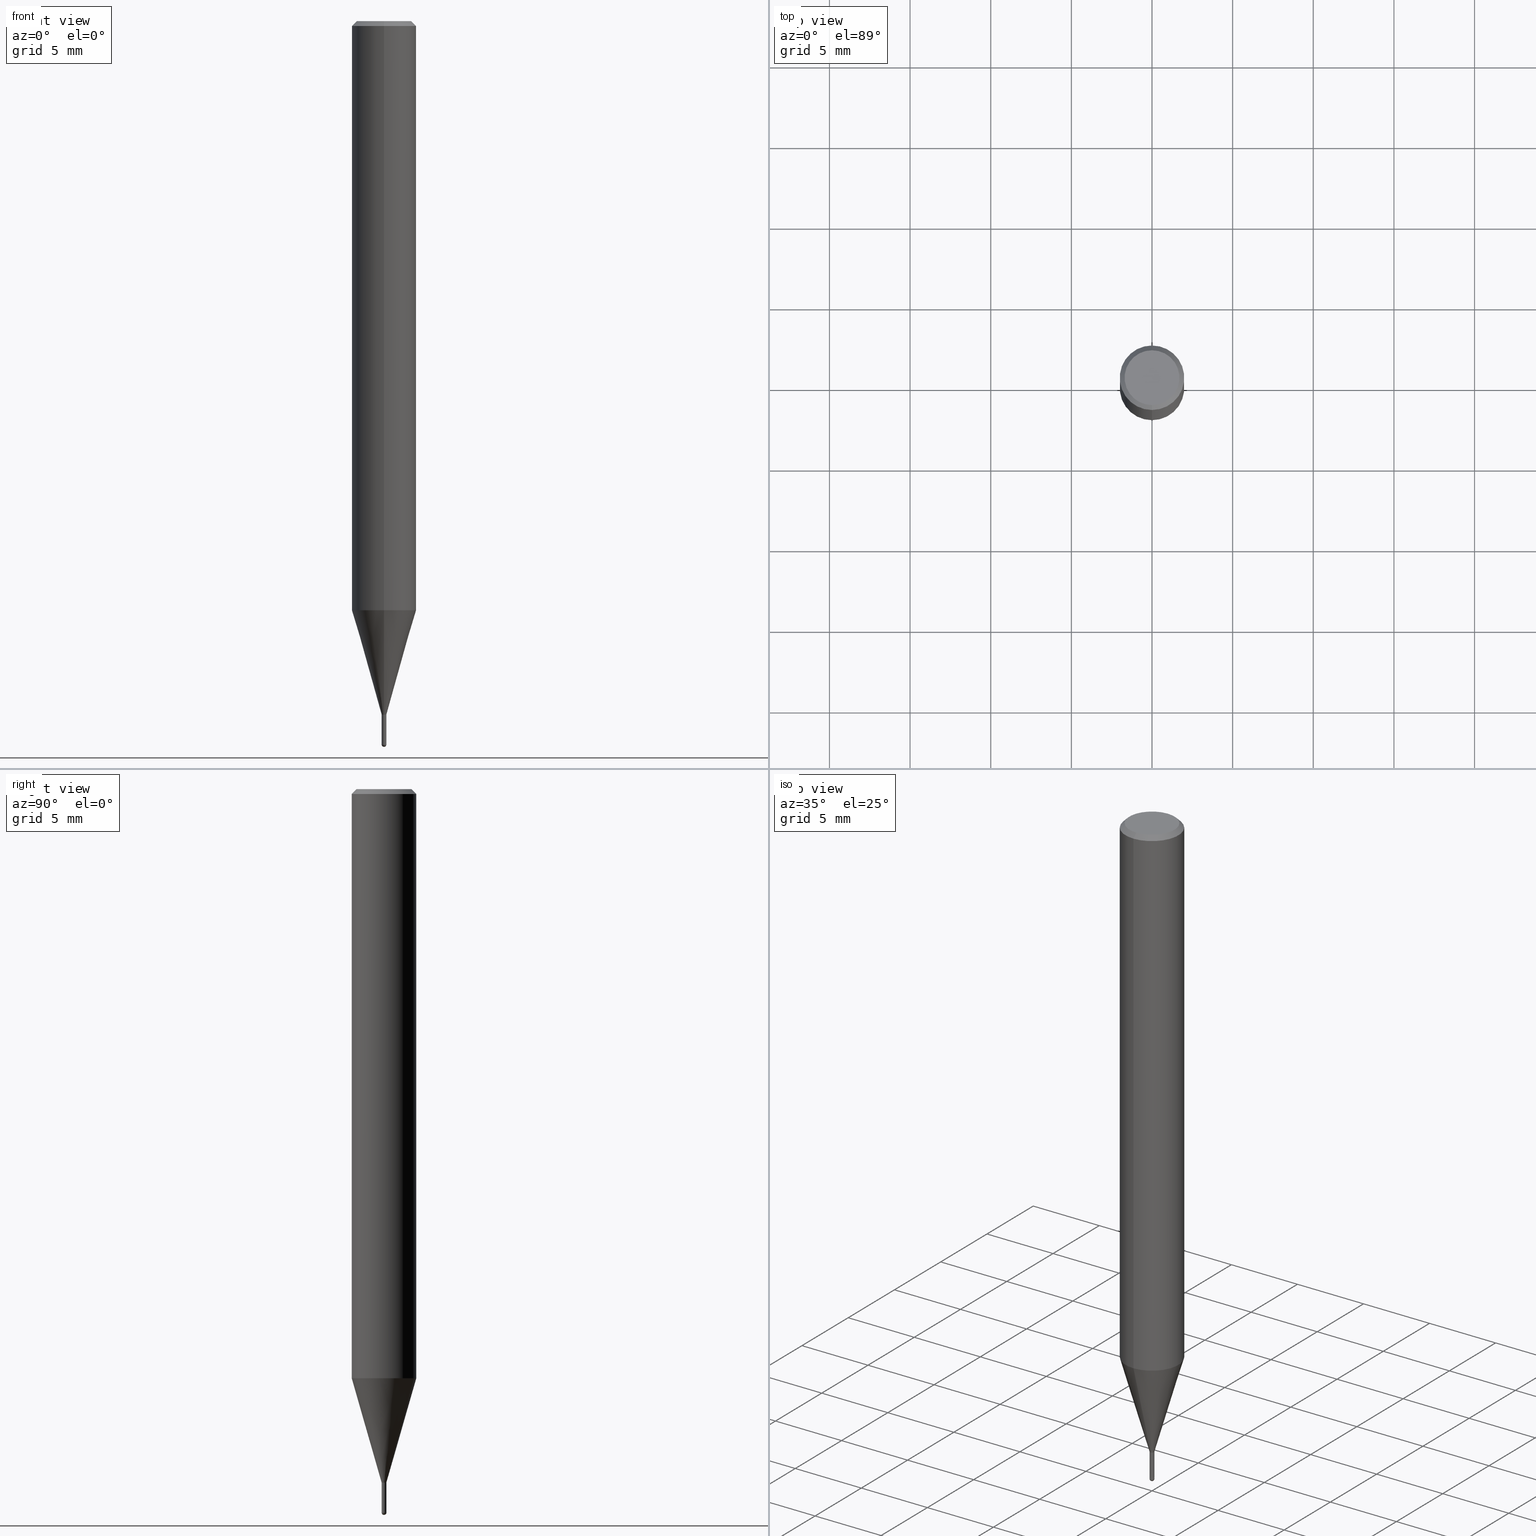
[diagram: canonical four-view strip — front | top / right | iso, engineering-drawing reading convention]
A machine part, canonical four-view strip (front | top / right | iso — engineering-drawing reading convention). The complete STEP part file that produces these views, byte-faithful:
ISO-10303-21;
HEADER;
FILE_DESCRIPTION(('no description'),'unknown implementation level');
FILE_NAME('HSLB2003-020-Huellk.stp','  ',('CIMSOURCE GmbH'),('CADClick - KiM GmbH - www.kimweb.de'),'unknown preprocess','ACIS','unknown authorization');
FILE_SCHEMA(('automotive_design'));
ENDSEC;
DATA;
#1=MECHANICAL_DESIGN_GEOMETRIC_PRESENTATION_REPRESENTATION(' ',(#14,#15,#16,#17,#18,#19,#20,#21,#22,#23,#24,#25,#26,#27,#28,#29,#30,#31,#32,#33,#34,#35,#36,#37,#38,#39,#40,#41,#42,#43,#44,#45,#46,#47,#48,#49,#50,#51,#52,#53,#54,#55,#56,#57,#58,#59,#60,#61,#62,#63,#64,#65,#66,#67,#68,#69,#70,#71,#72,#73,#74),#10);
#2=PRODUCT_DEFINITION_CONTEXT('',#75,'design');
#3=APPLICATION_PROTOCOL_DEFINITION('INTERNATIONAL STANDARD','automotive_design',1994,#75);
#4=PRODUCT_CATEGORY_RELATIONSHIP('NONE','NONE',#76,#77);
#5=SHAPE_DEFINITION_REPRESENTATION(#78,#79);
#6=PRODUCT_DEFINITION_CONTEXT('',#80,'design');
#7=APPLICATION_PROTOCOL_DEFINITION('INTERNATIONAL STANDARD','automotive_design',1994,#80);
#8=PRODUCT_CATEGORY_RELATIONSHIP('NONE','NONE',#81,#82);
#9=SHAPE_DEFINITION_REPRESENTATION(#83,#84);
#10= (GEOMETRIC_REPRESENTATION_CONTEXT(3)GLOBAL_UNCERTAINTY_ASSIGNED_CONTEXT((#87))GLOBAL_UNIT_ASSIGNED_CONTEXT((#89,#90,#91))REPRESENTATION_CONTEXT('NONE','WORKSPACE'));
#14=STYLED_ITEM('',(#93),#94);
#15=STYLED_ITEM('',(#95),#96);
#16=STYLED_ITEM('',(#97),#98);
#17=STYLED_ITEM('',(#99),#100);
#18=STYLED_ITEM('',(#101),#102);
#19=STYLED_ITEM('',(#103),#104);
#20=STYLED_ITEM('',(#105),#106);
#21=STYLED_ITEM('',(#107),#108);
#22=STYLED_ITEM('',(#109),#110);
#23=STYLED_ITEM('',(#111),#112);
#24=STYLED_ITEM('',(#113),#114);
#25=STYLED_ITEM('',(#115),#116);
#26=STYLED_ITEM('',(#117),#118);
#27=STYLED_ITEM('',(#119),#120);
#28=STYLED_ITEM('',(#121),#122);
#29=STYLED_ITEM('',(#123),#124);
#30=STYLED_ITEM('',(#125),#126);
#31=STYLED_ITEM('',(#127),#128);
#32=STYLED_ITEM('',(#129),#130);
#33=STYLED_ITEM('',(#131),#132);
#34=STYLED_ITEM('',(#133),#134);
#35=STYLED_ITEM('',(#135),#136);
#36=STYLED_ITEM('',(#137),#138);
#37=STYLED_ITEM('',(#139),#140);
#38=STYLED_ITEM('',(#141),#142);
#39=STYLED_ITEM('',(#143),#144);
#40=STYLED_ITEM('',(#145),#146);
#41=STYLED_ITEM('',(#147),#148);
#42=STYLED_ITEM('',(#149),#150);
#43=STYLED_ITEM('',(#151),#152);
#44=STYLED_ITEM('',(#153),#154);
#45=STYLED_ITEM('',(#155),#156);
#46=STYLED_ITEM('',(#157),#158);
#47=STYLED_ITEM('',(#159),#160);
#48=STYLED_ITEM('',(#161),#162);
#49=STYLED_ITEM('',(#163),#164);
#50=STYLED_ITEM('',(#165),#166);
#51=STYLED_ITEM('',(#167),#168);
#52=STYLED_ITEM('',(#169),#170);
#53=STYLED_ITEM('',(#171),#172);
#54=STYLED_ITEM('',(#173),#174);
#55=STYLED_ITEM('',(#175),#176);
#56=STYLED_ITEM('',(#177),#178);
#57=STYLED_ITEM('',(#179),#180);
#58=STYLED_ITEM('',(#181),#182);
#59=STYLED_ITEM('',(#183),#184);
#60=STYLED_ITEM('',(#185),#186);
#61=STYLED_ITEM('',(#187),#188);
#62=STYLED_ITEM('',(#189),#190);
#63=STYLED_ITEM('',(#191),#192);
#64=STYLED_ITEM('',(#193),#194);
#65=STYLED_ITEM('',(#195),#196);
#66=STYLED_ITEM('',(#197),#198);
#67=STYLED_ITEM('',(#199),#200);
#68=STYLED_ITEM('',(#201),#202);
#69=STYLED_ITEM('',(#203),#204);
#70=STYLED_ITEM('',(#205),#206);
#71=STYLED_ITEM('',(#207),#208);
#72=STYLED_ITEM('',(#209),#210);
#73=STYLED_ITEM('',(#211),#212);
#74=STYLED_ITEM('',(#213),#214);
#75=APPLICATION_CONTEXT(' ');
#76=PRODUCT_CATEGORY('part','NONE');
#77=PRODUCT_RELATED_PRODUCT_CATEGORY('detail',' ',(#215));
#78=PRODUCT_DEFINITION_SHAPE('NONE','NONE',#216);
#79=ADVANCED_BREP_SHAPE_REPRESENTATION('1',(#164,#217),#10);
#80=APPLICATION_CONTEXT(' ');
#81=PRODUCT_CATEGORY('part','NONE');
#82=PRODUCT_RELATED_PRODUCT_CATEGORY('detail',' ',(#218));
#83=PRODUCT_DEFINITION_SHAPE('NONE','NONE',#219);
#84=ADVANCED_BREP_SHAPE_REPRESENTATION('2',(#124,#220),#10);
#87=UNCERTAINTY_MEASURE_WITH_UNIT(LENGTH_MEASURE(1.0E-006),#89,'','');
#89= (CONVERSION_BASED_UNIT('MILLIMETRE',#223)LENGTH_UNIT()NAMED_UNIT(#226));
#90= (NAMED_UNIT(#228)PLANE_ANGLE_UNIT()SI_UNIT($,.RADIAN.));
#91= (NAMED_UNIT(#228)SOLID_ANGLE_UNIT()SI_UNIT($,.STERADIAN.));
#93=PRESENTATION_STYLE_ASSIGNMENT((#234));
#94=VERTEX_POINT('',#235);
#95=PRESENTATION_STYLE_ASSIGNMENT((#236));
#96=ADVANCED_FACE('',(#237),#238,.T.);
#97=PRESENTATION_STYLE_ASSIGNMENT((#239));
#98=EDGE_CURVE('',#128,#196,#240,.T.);
#99=PRESENTATION_STYLE_ASSIGNMENT((#241));
#100=ADVANCED_FACE('',(#242),#243,.T.);
#101=PRESENTATION_STYLE_ASSIGNMENT((#244));
#102=EDGE_CURVE('',#186,#196,#245,.T.);
#103=PRESENTATION_STYLE_ASSIGNMENT((#246));
#104=EDGE_CURVE('',#168,#128,#247,.T.);
#105=PRESENTATION_STYLE_ASSIGNMENT((#248));
#106=VERTEX_POINT('',#249);
#107=PRESENTATION_STYLE_ASSIGNMENT((#250));
#108=EDGE_CURVE('',#146,#184,#251,.T.);
#109=PRESENTATION_STYLE_ASSIGNMENT((#252));
#110=VERTEX_POINT('',#253);
#111=PRESENTATION_STYLE_ASSIGNMENT((#254));
#112=VERTEX_POINT('',#255);
#113=PRESENTATION_STYLE_ASSIGNMENT((#256));
#114=EDGE_CURVE('',#184,#162,#257,.T.);
#115=PRESENTATION_STYLE_ASSIGNMENT((#258));
#116=EDGE_CURVE('',#196,#150,#259,.T.);
#117=PRESENTATION_STYLE_ASSIGNMENT((#260));
#118=ADVANCED_FACE('',(#261),#262,.T.);
#119=PRESENTATION_STYLE_ASSIGNMENT((#263));
#120=ADVANCED_FACE('',(#264,#265),#266,.T.);
#121=PRESENTATION_STYLE_ASSIGNMENT((#267));
#122=ADVANCED_FACE('',(#268),#269,.T.);
#123=PRESENTATION_STYLE_ASSIGNMENT((#270));
#124=MANIFOLD_SOLID_BREP('2',#271);
#125=PRESENTATION_STYLE_ASSIGNMENT((#272));
#126=EDGE_CURVE('',#150,#112,#273,.T.);
#127=PRESENTATION_STYLE_ASSIGNMENT((#274));
#128=VERTEX_POINT('',#275);
#129=PRESENTATION_STYLE_ASSIGNMENT((#276));
#130=EDGE_CURVE('',#106,#154,#277,.T.);
#131=PRESENTATION_STYLE_ASSIGNMENT((#278));
#132=EDGE_CURVE('',#196,#186,#279,.T.);
#133=PRESENTATION_STYLE_ASSIGNMENT((#280));
#134=ADVANCED_FACE('',(#281),#282,.T.);
#135=PRESENTATION_STYLE_ASSIGNMENT((#283));
#136=EDGE_CURVE('',#162,#94,#284,.T.);
#137=PRESENTATION_STYLE_ASSIGNMENT((#285));
#138=EDGE_CURVE('',#112,#186,#286,.T.);
#139=PRESENTATION_STYLE_ASSIGNMENT((#287));
#140=ADVANCED_FACE('',(#288),#289,.T.);
#141=PRESENTATION_STYLE_ASSIGNMENT((#290));
#142=EDGE_CURVE('',#154,#106,#291,.T.);
#143=PRESENTATION_STYLE_ASSIGNMENT((#292));
#144=EDGE_CURVE('',#184,#146,#293,.T.);
#145=PRESENTATION_STYLE_ASSIGNMENT((#294));
#146=VERTEX_POINT('',#295);
#147=PRESENTATION_STYLE_ASSIGNMENT((#296));
#148=EDGE_CURVE('',#160,#146,#297,.T.);
#149=PRESENTATION_STYLE_ASSIGNMENT((#298));
#150=VERTEX_POINT('',#299);
#151=PRESENTATION_STYLE_ASSIGNMENT((#300));
#152=EDGE_CURVE('',#186,#168,#301,.T.);
#153=PRESENTATION_STYLE_ASSIGNMENT((#302));
#154=VERTEX_POINT('',#303);
#155=PRESENTATION_STYLE_ASSIGNMENT((#304));
#156=EDGE_CURVE('',#154,#106,#305,.T.);
#157=PRESENTATION_STYLE_ASSIGNMENT((#306));
#158=EDGE_CURVE('',#162,#160,#307,.T.);
#159=PRESENTATION_STYLE_ASSIGNMENT((#308));
#160=VERTEX_POINT('',#309);
#161=PRESENTATION_STYLE_ASSIGNMENT((#310));
#162=VERTEX_POINT('',#311);
#163=PRESENTATION_STYLE_ASSIGNMENT((#312));
#164=MANIFOLD_SOLID_BREP('1',#313);
#165=PRESENTATION_STYLE_ASSIGNMENT((#314));
#166=EDGE_CURVE('',#172,#160,#315,.T.);
#167=PRESENTATION_STYLE_ASSIGNMENT((#316));
#168=VERTEX_POINT('',#317);
#169=PRESENTATION_STYLE_ASSIGNMENT((#318));
#170=EDGE_CURVE('',#128,#168,#319,.T.);
#171=PRESENTATION_STYLE_ASSIGNMENT((#320));
#172=VERTEX_POINT('',#321);
#173=PRESENTATION_STYLE_ASSIGNMENT((#322));
#174=EDGE_CURVE('',#200,#110,#323,.T.);
#175=PRESENTATION_STYLE_ASSIGNMENT((#324));
#176=EDGE_CURVE('',#172,#94,#325,.T.);
#177=PRESENTATION_STYLE_ASSIGNMENT((#326));
#178=ADVANCED_FACE('',(#327),#328,.T.);
#179=PRESENTATION_STYLE_ASSIGNMENT((#329));
#180=EDGE_CURVE('',#110,#106,#330,.T.);
#181=PRESENTATION_STYLE_ASSIGNMENT((#331));
#182=ADVANCED_FACE('',(#332),#333,.T.);
#183=PRESENTATION_STYLE_ASSIGNMENT((#334));
#184=VERTEX_POINT('',#335);
#185=PRESENTATION_STYLE_ASSIGNMENT((#336));
#186=VERTEX_POINT('',#337);
#187=PRESENTATION_STYLE_ASSIGNMENT((#338));
#188=ADVANCED_FACE('',(#339),#340,.T.);
#189=PRESENTATION_STYLE_ASSIGNMENT((#341));
#190=ADVANCED_FACE('',(#342),#343,.T.);
#191=PRESENTATION_STYLE_ASSIGNMENT((#344));
#192=ADVANCED_FACE('',(#345),#346,.T.);
#193=PRESENTATION_STYLE_ASSIGNMENT((#347));
#194=ADVANCED_FACE('',(#348),#349,.T.);
#195=PRESENTATION_STYLE_ASSIGNMENT((#350));
#196=VERTEX_POINT('',#351);
#197=PRESENTATION_STYLE_ASSIGNMENT((#352));
#198=ADVANCED_FACE('',(#353),#354,.T.);
#199=PRESENTATION_STYLE_ASSIGNMENT((#355));
#200=VERTEX_POINT('',#356);
#201=PRESENTATION_STYLE_ASSIGNMENT((#357));
#202=EDGE_CURVE('',#110,#200,#358,.T.);
#203=PRESENTATION_STYLE_ASSIGNMENT((#359));
#204=EDGE_CURVE('',#160,#162,#360,.T.);
#205=PRESENTATION_STYLE_ASSIGNMENT((#361));
#206=EDGE_CURVE('',#112,#150,#362,.T.);
#207=PRESENTATION_STYLE_ASSIGNMENT((#363));
#208=EDGE_CURVE('',#94,#172,#364,.T.);
#209=PRESENTATION_STYLE_ASSIGNMENT((#365));
#210=ADVANCED_FACE('',(#366),#367,.T.);
#211=PRESENTATION_STYLE_ASSIGNMENT((#368));
#212=ADVANCED_FACE('',(#369),#370,.T.);
#213=PRESENTATION_STYLE_ASSIGNMENT((#371));
#214=EDGE_CURVE('',#154,#200,#372,.T.);
#215=PRODUCT('1','1','PART-1-DESC',(#373));
#216=PRODUCT_DEFINITION('NONE','NONE',#374,#2);
#217=AXIS2_PLACEMENT_3D('',#375,#376,#377);
#218=PRODUCT('2','2','PART-2-DESC',(#378));
#219=PRODUCT_DEFINITION('NONE','NONE',#379,#6);
#220=AXIS2_PLACEMENT_3D('',#380,#381,#382);
#223=LENGTH_MEASURE_WITH_UNIT(LENGTH_MEASURE(1.0),#383);
#226=DIMENSIONAL_EXPONENTS(1.0,0.0,0.0,0.0,0.0,0.0,0.0);
#228=DIMENSIONAL_EXPONENTS(0.0,0.0,0.0,0.0,0.0,0.0,0.0);
#234=POINT_STYLE(' ',#384,POSITIVE_LENGTH_MEASURE(1.0E-006),#385);
#235=CARTESIAN_POINT('',(2.44915147732706E-016,-1.99995,-36.531));
#236=SURFACE_STYLE_USAGE(.BOTH.,#386);
#237=FACE_OUTER_BOUND('',#387,.T.);
#238=PLANE('',#388);
#239=CURVE_STYLE('',#389,POSITIVE_LENGTH_MEASURE(1.0E-006),#390);
#240=LINE('',#391,#392);
#241=SURFACE_STYLE_USAGE(.BOTH.,#393);
#242=FACE_OUTER_BOUND('',#394,.T.);
#243=CONICAL_SURFACE('',#395,1.07245,0.279258979430112);
#244=CURVE_STYLE('',#396,POSITIVE_LENGTH_MEASURE(1.0E-006),#397);
#245=CIRCLE('',#398,2.0);
#246=CURVE_STYLE('',#399,POSITIVE_LENGTH_MEASURE(1.0E-006),#400);
#247=CIRCLE('',#401,1.7);
#248=POINT_STYLE(' ',#402,POSITIVE_LENGTH_MEASURE(1.0E-006),#403);
#249=CARTESIAN_POINT('',(0.0,0.15,-44.85));
#250=CURVE_STYLE('',#404,POSITIVE_LENGTH_MEASURE(1.0E-006),#405);
#251=CIRCLE('',#406,0.14495);
#252=POINT_STYLE(' ',#407,POSITIVE_LENGTH_MEASURE(1.0E-006),#408);
#253=CARTESIAN_POINT('',(0.0,0.1499,-44.76));
#254=POINT_STYLE(' ',#409,POSITIVE_LENGTH_MEASURE(1.0E-006),#410);
#255=CARTESIAN_POINT('',(2.44921270764475E-016,-2.0,-36.531));
#256=CURVE_STYLE('',#411,POSITIVE_LENGTH_MEASURE(1.0E-006),#412);
#257=LINE('',#413,#414);
#258=CURVE_STYLE('',#415,POSITIVE_LENGTH_MEASURE(1.0E-006),#416);
#259=LINE('',#417,#418);
#260=SURFACE_STYLE_USAGE(.BOTH.,#419);
#261=FACE_OUTER_BOUND('',#420,.T.);
#262=PLANE('',#421);
#263=SURFACE_STYLE_USAGE(.BOTH.,#422);
#264=FACE_OUTER_BOUND('',#423,.T.);
#265=FACE_BOUND('',#424,.T.);
#266=PLANE('',#425);
#267=SURFACE_STYLE_USAGE(.BOTH.,#426);
#268=FACE_OUTER_BOUND('',#427,.T.);
#269=CONICAL_SURFACE('',#428,1.07245,0.279258979430112);
#270=SURFACE_STYLE_USAGE(.BOTH.,#429);
#271=CLOSED_SHELL('',(#140,#178,#188,#182,#212));
#272=CURVE_STYLE('',#430,POSITIVE_LENGTH_MEASURE(1.0E-006),#431);
#273=CIRCLE('',#432,2.0);
#274=POINT_STYLE(' ',#433,POSITIVE_LENGTH_MEASURE(1.0E-006),#434);
#275=CARTESIAN_POINT('',(0.0,1.7,0.0));
#276=CURVE_STYLE('',#435,POSITIVE_LENGTH_MEASURE(1.0E-006),#436);
#277=CIRCLE('',#437,0.15);
#278=CURVE_STYLE('',#438,POSITIVE_LENGTH_MEASURE(1.0E-006),#439);
#279=CIRCLE('',#440,2.0);
#280=SURFACE_STYLE_USAGE(.BOTH.,#441);
#281=FACE_OUTER_BOUND('',#442,.T.);
#282=CYLINDRICAL_SURFACE('',#443,2.0);
#283=CURVE_STYLE('',#444,POSITIVE_LENGTH_MEASURE(1.0E-006),#445);
#284=LINE('',#446,#447);
#285=CURVE_STYLE('',#448,POSITIVE_LENGTH_MEASURE(1.0E-006),#449);
#286=LINE('',#450,#451);
#287=SURFACE_STYLE_USAGE(.BOTH.,#452);
#288=FACE_OUTER_BOUND('',#453,.T.);
#289=SPHERICAL_SURFACE('',#454,0.15);
#290=CURVE_STYLE('',#455,POSITIVE_LENGTH_MEASURE(1.0E-006),#456);
#291=CIRCLE('',#457,0.15);
#292=CURVE_STYLE('',#458,POSITIVE_LENGTH_MEASURE(1.0E-006),#459);
#293=CIRCLE('',#460,0.14495);
#294=POINT_STYLE(' ',#461,POSITIVE_LENGTH_MEASURE(1.0E-006),#462);
#295=CARTESIAN_POINT('',(0.0,0.14495,-44.76));
#296=CURVE_STYLE('',#463,POSITIVE_LENGTH_MEASURE(1.0E-006),#464);
#297=LINE('',#465,#466);
#298=POINT_STYLE(' ',#467,POSITIVE_LENGTH_MEASURE(1.0E-006),#468);
#299=CARTESIAN_POINT('',(0.0,2.0,-36.531));
#300=CURVE_STYLE('',#469,POSITIVE_LENGTH_MEASURE(1.0E-006),#470);
#301=LINE('',#471,#472);
#302=POINT_STYLE(' ',#473,POSITIVE_LENGTH_MEASURE(1.0E-006),#474);
#303=CARTESIAN_POINT('',(1.83690953073356E-017,-0.15,-44.85));
#304=CURVE_STYLE('',#475,POSITIVE_LENGTH_MEASURE(1.0E-006),#476);
#305=CIRCLE('',#477,0.15);
#306=CURVE_STYLE('',#478,POSITIVE_LENGTH_MEASURE(1.0E-006),#479);
#307=CIRCLE('',#480,0.14495);
#308=POINT_STYLE(' ',#481,POSITIVE_LENGTH_MEASURE(1.0E-006),#482);
#309=CARTESIAN_POINT('',(0.0,0.14495,-43.0));
#310=POINT_STYLE(' ',#483,POSITIVE_LENGTH_MEASURE(1.0E-006),#484);
#311=CARTESIAN_POINT('',(1.77506690986554E-017,-0.14495,-43.0));
#312=SURFACE_STYLE_USAGE(.BOTH.,#485);
#313=CLOSED_SHELL('',(#190,#100,#134,#210,#120,#118,#192,#194,#122,#198,#96));
#314=CURVE_STYLE('',#486,POSITIVE_LENGTH_MEASURE(1.0E-006),#487);
#315=LINE('',#488,#489);
#316=POINT_STYLE(' ',#490,POSITIVE_LENGTH_MEASURE(1.0E-006),#491);
#317=CARTESIAN_POINT('',(2.08183080149804E-016,-1.7,0.0));
#318=CURVE_STYLE('',#492,POSITIVE_LENGTH_MEASURE(1.0E-006),#493);
#319=CIRCLE('',#494,1.7);
#320=POINT_STYLE(' ',#495,POSITIVE_LENGTH_MEASURE(1.0E-006),#496);
#321=CARTESIAN_POINT('',(0.0,1.99995,-36.531));
#322=CURVE_STYLE('',#497,POSITIVE_LENGTH_MEASURE(1.0E-006),#498);
#323=CIRCLE('',#499,0.1499);
#324=CURVE_STYLE('',#500,POSITIVE_LENGTH_MEASURE(1.0E-006),#501);
#325=CIRCLE('',#502,1.99995);
#326=SURFACE_STYLE_USAGE(.BOTH.,#503);
#327=FACE_OUTER_BOUND('',#504,.T.);
#328=CONICAL_SURFACE('',#505,0.14995,0.00111111065386396);
#329=CURVE_STYLE('',#506,POSITIVE_LENGTH_MEASURE(1.0E-006),#507);
#330=LINE('',#508,#509);
#331=SURFACE_STYLE_USAGE(.BOTH.,#510);
#332=FACE_OUTER_BOUND('',#511,.T.);
#333=CONICAL_SURFACE('',#512,0.14995,0.00111111065386396);
#334=POINT_STYLE(' ',#513,POSITIVE_LENGTH_MEASURE(1.0E-006),#514);
#335=CARTESIAN_POINT('',(1.77506690986554E-017,-0.14495,-44.76));
#336=POINT_STYLE(' ',#515,POSITIVE_LENGTH_MEASURE(1.0E-006),#516);
#337=CARTESIAN_POINT('',(2.44921270764475E-016,-2.0,-0.299999999999997));
#338=SURFACE_STYLE_USAGE(.BOTH.,#517);
#339=FACE_OUTER_BOUND('',#518,.T.);
#340=PLANE('',#519);
#341=SURFACE_STYLE_USAGE(.BOTH.,#520);
#342=FACE_OUTER_BOUND('',#521,.T.);
#343=CYLINDRICAL_SURFACE('',#522,0.14495);
#344=SURFACE_STYLE_USAGE(.BOTH.,#523);
#345=FACE_OUTER_BOUND('',#524,.T.);
#346=CONICAL_SURFACE('',#525,1.85,0.785398163397453);
#347=SURFACE_STYLE_USAGE(.BOTH.,#526);
#348=FACE_OUTER_BOUND('',#527,.T.);
#349=CYLINDRICAL_SURFACE('',#528,2.0);
#350=POINT_STYLE(' ',#529,POSITIVE_LENGTH_MEASURE(1.0E-006),#530);
#351=CARTESIAN_POINT('',(0.0,2.0,-0.299999999999997));
#352=SURFACE_STYLE_USAGE(.BOTH.,#531);
#353=FACE_OUTER_BOUND('',#532,.T.);
#354=CYLINDRICAL_SURFACE('',#533,0.14495);
#355=POINT_STYLE(' ',#534,POSITIVE_LENGTH_MEASURE(1.0E-006),#535);
#356=CARTESIAN_POINT('',(1.83568492437974E-017,-0.1499,-44.76));
#357=CURVE_STYLE('',#536,POSITIVE_LENGTH_MEASURE(1.0E-006),#537);
#358=CIRCLE('',#538,0.1499);
#359=CURVE_STYLE('',#539,POSITIVE_LENGTH_MEASURE(1.0E-006),#540);
#360=CIRCLE('',#541,0.14495);
#361=CURVE_STYLE('',#542,POSITIVE_LENGTH_MEASURE(1.0E-006),#543);
#362=CIRCLE('',#544,2.0);
#363=CURVE_STYLE('',#545,POSITIVE_LENGTH_MEASURE(1.0E-006),#546);
#364=CIRCLE('',#547,1.99995);
#365=SURFACE_STYLE_USAGE(.BOTH.,#548);
#366=FACE_OUTER_BOUND('',#549,.T.);
#367=CONICAL_SURFACE('',#550,1.85,0.785398163397453);
#368=SURFACE_STYLE_USAGE(.BOTH.,#551);
#369=FACE_OUTER_BOUND('',#552,.T.);
#370=SPHERICAL_SURFACE('',#553,0.15);
#371=CURVE_STYLE('',#554,POSITIVE_LENGTH_MEASURE(1.0E-006),#555);
#372=LINE('',#556,#557);
#373=PRODUCT_CONTEXT('',#75,'mechanical');
#374=PRODUCT_DEFINITION_FORMATION_WITH_SPECIFIED_SOURCE(' ','NONE',#215,.NOT_KNOWN.);
#375=CARTESIAN_POINT('',(0.0,0.0,0.0));
#376=DIRECTION('',(0.0,0.0,1.0));
#377=DIRECTION('',(1.0,0.0,0.0));
#378=PRODUCT_CONTEXT('',#80,'mechanical');
#379=PRODUCT_DEFINITION_FORMATION_WITH_SPECIFIED_SOURCE(' ','NONE',#218,.NOT_KNOWN.);
#380=CARTESIAN_POINT('',(0.0,0.0,0.0));
#381=DIRECTION('',(0.0,0.0,1.0));
#382=DIRECTION('',(1.0,0.0,0.0));
#383= (NAMED_UNIT(#226)LENGTH_UNIT()SI_UNIT(.MILLI.,.METRE.));
#384=PRE_DEFINED_MARKER('');
#385=COLOUR_RGB('',0.498039215803146,0.498039215803146,0.498039215803146);
#386=SURFACE_SIDE_STYLE('',(#559));
#387=EDGE_LOOP('',(#560,#561));
#388=AXIS2_PLACEMENT_3D('',#562,#563,#564);
#389=DRAUGHTING_PRE_DEFINED_CURVE_FONT('continuous');
#390=COLOUR_RGB('',0.498039215803146,0.498039215803146,0.498039215803146);
#391=CARTESIAN_POINT('',(-2.2655217545714E-016,1.85,-0.149999999999999));
#392=VECTOR('',#565,1.0);
#393=SURFACE_SIDE_STYLE('',(#566));
#394=EDGE_LOOP('',(#567,#568,#569,#570));
#395=AXIS2_PLACEMENT_3D('',#571,#572,#573);
#396=DRAUGHTING_PRE_DEFINED_CURVE_FONT('continuous');
#397=COLOUR_RGB('',0.498039215803146,0.498039215803146,0.498039215803146);
#398=AXIS2_PLACEMENT_3D('',#574,#575,#576);
#399=DRAUGHTING_PRE_DEFINED_CURVE_FONT('continuous');
#400=COLOUR_RGB('',0.498039215803146,0.498039215803146,0.498039215803146);
#401=AXIS2_PLACEMENT_3D('',#577,#578,#579);
#402=PRE_DEFINED_MARKER('');
#403=COLOUR_RGB('',0.800000011920929,0.800000011920929,0.800000011920929);
#404=DRAUGHTING_PRE_DEFINED_CURVE_FONT('continuous');
#405=COLOUR_RGB('',0.498039215803146,0.498039215803146,0.498039215803146);
#406=AXIS2_PLACEMENT_3D('',#580,#581,#582);
#407=PRE_DEFINED_MARKER('');
#408=COLOUR_RGB('',0.800000011920929,0.800000011920929,0.800000011920929);
#409=PRE_DEFINED_MARKER('');
#410=COLOUR_RGB('',0.498039215803146,0.498039215803146,0.498039215803146);
#411=DRAUGHTING_PRE_DEFINED_CURVE_FONT('continuous');
#412=COLOUR_RGB('',0.498039215803146,0.498039215803146,0.498039215803146);
#413=CARTESIAN_POINT('',(1.77506690986554E-017,-0.14495,-43.88));
#414=VECTOR('',#583,1.0);
#415=DRAUGHTING_PRE_DEFINED_CURVE_FONT('continuous');
#416=COLOUR_RGB('',0.498039215803146,0.498039215803146,0.498039215803146);
#417=CARTESIAN_POINT('',(-2.44921270764475E-016,2.0,-18.4155));
#418=VECTOR('',#584,1.0);
#419=SURFACE_SIDE_STYLE('',(#585));
#420=EDGE_LOOP('',(#586,#587));
#421=AXIS2_PLACEMENT_3D('',#588,#589,#590);
#422=SURFACE_SIDE_STYLE('',(#591));
#423=EDGE_LOOP('',(#592,#593));
#424=EDGE_LOOP('',(#594,#595));
#425=AXIS2_PLACEMENT_3D('',#596,#597,#598);
#426=SURFACE_SIDE_STYLE('',(#599));
#427=EDGE_LOOP('',(#600,#601,#602,#603));
#428=AXIS2_PLACEMENT_3D('',#604,#605,#606);
#429=SURFACE_SIDE_STYLE('',(#607));
#430=DRAUGHTING_PRE_DEFINED_CURVE_FONT('continuous');
#431=COLOUR_RGB('',0.498039215803146,0.498039215803146,0.498039215803146);
#432=AXIS2_PLACEMENT_3D('',#608,#609,#610);
#433=PRE_DEFINED_MARKER('');
#434=COLOUR_RGB('',0.498039215803146,0.498039215803146,0.498039215803146);
#435=DRAUGHTING_PRE_DEFINED_CURVE_FONT('continuous');
#436=COLOUR_RGB('',0.800000011920929,0.800000011920929,0.800000011920929);
#437=AXIS2_PLACEMENT_3D('',#611,#612,#613);
#438=DRAUGHTING_PRE_DEFINED_CURVE_FONT('continuous');
#439=COLOUR_RGB('',0.498039215803146,0.498039215803146,0.498039215803146);
#440=AXIS2_PLACEMENT_3D('',#614,#615,#616);
#441=SURFACE_SIDE_STYLE('',(#617));
#442=EDGE_LOOP('',(#618,#619,#620,#621));
#443=AXIS2_PLACEMENT_3D('',#622,#623,#624);
#444=DRAUGHTING_PRE_DEFINED_CURVE_FONT('continuous');
#445=COLOUR_RGB('',0.498039215803146,0.498039215803146,0.498039215803146);
#446=CARTESIAN_POINT('',(1.31332908415681E-016,-1.07245,-39.7655));
#447=VECTOR('',#625,1.0);
#448=DRAUGHTING_PRE_DEFINED_CURVE_FONT('continuous');
#449=COLOUR_RGB('',0.498039215803146,0.498039215803146,0.498039215803146);
#450=CARTESIAN_POINT('',(2.44921270764475E-016,-2.0,-18.4155));
#451=VECTOR('',#626,1.0);
#452=SURFACE_SIDE_STYLE('',(#627));
#453=EDGE_LOOP('',(#628,#629));
#454=AXIS2_PLACEMENT_3D('',#630,#631,#632);
#455=DRAUGHTING_PRE_DEFINED_CURVE_FONT('continuous');
#456=COLOUR_RGB('',0.800000011920929,0.800000011920929,0.800000011920929);
#457=AXIS2_PLACEMENT_3D('',#633,#634,#635);
#458=DRAUGHTING_PRE_DEFINED_CURVE_FONT('continuous');
#459=COLOUR_RGB('',0.498039215803146,0.498039215803146,0.498039215803146);
#460=AXIS2_PLACEMENT_3D('',#636,#637,#638);
#461=PRE_DEFINED_MARKER('');
#462=COLOUR_RGB('',0.498039215803146,0.498039215803146,0.498039215803146);
#463=DRAUGHTING_PRE_DEFINED_CURVE_FONT('continuous');
#464=COLOUR_RGB('',0.498039215803146,0.498039215803146,0.498039215803146);
#465=CARTESIAN_POINT('',(-1.77506690986554E-017,0.14495,-43.88));
#466=VECTOR('',#639,1.0);
#467=PRE_DEFINED_MARKER('');
#468=COLOUR_RGB('',0.498039215803146,0.498039215803146,0.498039215803146);
#469=DRAUGHTING_PRE_DEFINED_CURVE_FONT('continuous');
#470=COLOUR_RGB('',0.498039215803146,0.498039215803146,0.498039215803146);
#471=CARTESIAN_POINT('',(2.2655217545714E-016,-1.85,-0.149999999999999));
#472=VECTOR('',#640,1.0);
#473=PRE_DEFINED_MARKER('');
#474=COLOUR_RGB('',0.800000011920929,0.800000011920929,0.800000011920929);
#475=DRAUGHTING_PRE_DEFINED_CURVE_FONT('continuous');
#476=COLOUR_RGB('',0.800000011920929,0.800000011920929,0.800000011920929);
#477=AXIS2_PLACEMENT_3D('',#641,#642,#643);
#478=DRAUGHTING_PRE_DEFINED_CURVE_FONT('continuous');
#479=COLOUR_RGB('',0.498039215803146,0.498039215803146,0.498039215803146);
#480=AXIS2_PLACEMENT_3D('',#644,#645,#646);
#481=PRE_DEFINED_MARKER('');
#482=COLOUR_RGB('',0.498039215803146,0.498039215803146,0.498039215803146);
#483=PRE_DEFINED_MARKER('');
#484=COLOUR_RGB('',0.498039215803146,0.498039215803146,0.498039215803146);
#485=SURFACE_SIDE_STYLE('',(#647));
#486=DRAUGHTING_PRE_DEFINED_CURVE_FONT('continuous');
#487=COLOUR_RGB('',0.498039215803146,0.498039215803146,0.498039215803146);
#488=CARTESIAN_POINT('',(-1.31332908415681E-016,1.07245,-39.7655));
#489=VECTOR('',#648,1.0);
#490=PRE_DEFINED_MARKER('');
#491=COLOUR_RGB('',0.498039215803146,0.498039215803146,0.498039215803146);
#492=DRAUGHTING_PRE_DEFINED_CURVE_FONT('continuous');
#493=COLOUR_RGB('',0.498039215803146,0.498039215803146,0.498039215803146);
#494=AXIS2_PLACEMENT_3D('',#649,#650,#651);
#495=PRE_DEFINED_MARKER('');
#496=COLOUR_RGB('',0.498039215803146,0.498039215803146,0.498039215803146);
#497=DRAUGHTING_PRE_DEFINED_CURVE_FONT('continuous');
#498=COLOUR_RGB('',0.800000011920929,0.800000011920929,0.800000011920929);
#499=AXIS2_PLACEMENT_3D('',#652,#653,#654);
#500=DRAUGHTING_PRE_DEFINED_CURVE_FONT('continuous');
#501=COLOUR_RGB('',0.498039215803146,0.498039215803146,0.498039215803146);
#502=AXIS2_PLACEMENT_3D('',#655,#656,#657);
#503=SURFACE_SIDE_STYLE('',(#658));
#504=EDGE_LOOP('',(#659,#660,#661,#662));
#505=AXIS2_PLACEMENT_3D('',#663,#664,#665);
#506=DRAUGHTING_PRE_DEFINED_CURVE_FONT('continuous');
#507=COLOUR_RGB('',0.800000011920929,0.800000011920929,0.800000011920929);
#508=CARTESIAN_POINT('',(-1.83629722755665E-017,0.14995,-44.805));
#509=VECTOR('',#666,1.0);
#510=SURFACE_SIDE_STYLE('',(#667));
#511=EDGE_LOOP('',(#668,#669,#670,#671));
#512=AXIS2_PLACEMENT_3D('',#672,#673,#674);
#513=PRE_DEFINED_MARKER('');
#514=COLOUR_RGB('',0.498039215803146,0.498039215803146,0.498039215803146);
#515=PRE_DEFINED_MARKER('');
#516=COLOUR_RGB('',0.498039215803146,0.498039215803146,0.498039215803146);
#517=SURFACE_SIDE_STYLE('',(#675));
#518=EDGE_LOOP('',(#676,#677));
#519=AXIS2_PLACEMENT_3D('',#678,#679,#680);
#520=SURFACE_SIDE_STYLE('',(#681));
#521=EDGE_LOOP('',(#682,#683,#684,#685));
#522=AXIS2_PLACEMENT_3D('',#686,#687,#688);
#523=SURFACE_SIDE_STYLE('',(#689));
#524=EDGE_LOOP('',(#690,#691,#692,#693));
#525=AXIS2_PLACEMENT_3D('',#694,#695,#696);
#526=SURFACE_SIDE_STYLE('',(#697));
#527=EDGE_LOOP('',(#698,#699,#700,#701));
#528=AXIS2_PLACEMENT_3D('',#702,#703,#704);
#529=PRE_DEFINED_MARKER('');
#530=COLOUR_RGB('',0.498039215803146,0.498039215803146,0.498039215803146);
#531=SURFACE_SIDE_STYLE('',(#705));
#532=EDGE_LOOP('',(#706,#707,#708,#709));
#533=AXIS2_PLACEMENT_3D('',#710,#711,#712);
#534=PRE_DEFINED_MARKER('');
#535=COLOUR_RGB('',0.800000011920929,0.800000011920929,0.800000011920929);
#536=DRAUGHTING_PRE_DEFINED_CURVE_FONT('continuous');
#537=COLOUR_RGB('',0.800000011920929,0.800000011920929,0.800000011920929);
#538=AXIS2_PLACEMENT_3D('',#713,#714,#715);
#539=DRAUGHTING_PRE_DEFINED_CURVE_FONT('continuous');
#540=COLOUR_RGB('',0.498039215803146,0.498039215803146,0.498039215803146);
#541=AXIS2_PLACEMENT_3D('',#716,#717,#718);
#542=DRAUGHTING_PRE_DEFINED_CURVE_FONT('continuous');
#543=COLOUR_RGB('',0.498039215803146,0.498039215803146,0.498039215803146);
#544=AXIS2_PLACEMENT_3D('',#719,#720,#721);
#545=DRAUGHTING_PRE_DEFINED_CURVE_FONT('continuous');
#546=COLOUR_RGB('',0.498039215803146,0.498039215803146,0.498039215803146);
#547=AXIS2_PLACEMENT_3D('',#722,#723,#724);
#548=SURFACE_SIDE_STYLE('',(#725));
#549=EDGE_LOOP('',(#726,#727,#728,#729));
#550=AXIS2_PLACEMENT_3D('',#730,#731,#732);
#551=SURFACE_SIDE_STYLE('',(#733));
#552=EDGE_LOOP('',(#734,#735));
#553=AXIS2_PLACEMENT_3D('',#736,#737,#738);
#554=DRAUGHTING_PRE_DEFINED_CURVE_FONT('continuous');
#555=COLOUR_RGB('',0.800000011920929,0.800000011920929,0.800000011920929);
#556=CARTESIAN_POINT('',(1.83629722755665E-017,-0.14995,-44.805));
#557=VECTOR('',#739,1.0);
#559=SURFACE_STYLE_FILL_AREA(#740);
#560=ORIENTED_EDGE('',*,*,#108,.T.);
#561=ORIENTED_EDGE('',*,*,#144,.T.);
#562=CARTESIAN_POINT('',(0.0,0.072475,-44.76));
#563=DIRECTION('',(0.0,0.0,-1.0));
#564=DIRECTION('',(0.0,1.0,0.0));
#565=DIRECTION('',(-8.6592745707194E-017,0.707106781186551,-0.707106781186544));
#566=SURFACE_STYLE_FILL_AREA(#741);
#567=ORIENTED_EDGE('',*,*,#166,.F.);
#568=ORIENTED_EDGE('',*,*,#176,.T.);
#569=ORIENTED_EDGE('',*,*,#136,.F.);
#570=ORIENTED_EDGE('',*,*,#204,.F.);
#571=CARTESIAN_POINT('',(0.0,0.0,-39.7655));
#572=DIRECTION('',(-0.0,-0.0,1.0));
#573=DIRECTION('',(0.0,1.0,0.0));
#574=CARTESIAN_POINT('',(0.0,0.0,-0.299999999999997));
#575=DIRECTION('',(0.0,0.0,-1.0));
#576=DIRECTION('',(0.0,1.0,0.0));
#577=CARTESIAN_POINT('',(0.0,0.0,0.0));
#578=DIRECTION('',(0.0,0.0,-1.0));
#579=DIRECTION('',(0.0,1.0,0.0));
#580=CARTESIAN_POINT('',(0.0,0.0,-44.76));
#581=DIRECTION('',(0.0,0.0,-1.0));
#582=DIRECTION('',(0.0,1.0,0.0));
#583=DIRECTION('',(-0.0,-0.0,1.0));
#584=DIRECTION('',(0.0,0.0,-1.0));
#585=SURFACE_STYLE_FILL_AREA(#742);
#586=ORIENTED_EDGE('',*,*,#170,.F.);
#587=ORIENTED_EDGE('',*,*,#104,.F.);
#588=CARTESIAN_POINT('',(0.0,0.85,0.0));
#589=DIRECTION('',(-0.0,0.0,1.0));
#590=DIRECTION('',(0.0,-1.0,0.0));
#591=SURFACE_STYLE_FILL_AREA(#743);
#592=ORIENTED_EDGE('',*,*,#126,.T.);
#593=ORIENTED_EDGE('',*,*,#206,.T.);
#594=ORIENTED_EDGE('',*,*,#176,.F.);
#595=ORIENTED_EDGE('',*,*,#208,.F.);
#596=CARTESIAN_POINT('',(0.0,1.0,-36.531));
#597=DIRECTION('',(0.0,0.0,-1.0));
#598=DIRECTION('',(0.0,1.0,0.0));
#599=SURFACE_STYLE_FILL_AREA(#744);
#600=ORIENTED_EDGE('',*,*,#166,.T.);
#601=ORIENTED_EDGE('',*,*,#158,.F.);
#602=ORIENTED_EDGE('',*,*,#136,.T.);
#603=ORIENTED_EDGE('',*,*,#208,.T.);
#604=CARTESIAN_POINT('',(0.0,0.0,-39.7655));
#605=DIRECTION('',(-0.0,-0.0,1.0));
#606=DIRECTION('',(0.0,1.0,0.0));
#607=SURFACE_STYLE_FILL_AREA(#745);
#608=CARTESIAN_POINT('',(0.0,0.0,-36.531));
#609=DIRECTION('',(0.0,0.0,-1.0));
#610=DIRECTION('',(0.0,1.0,0.0));
#611=CARTESIAN_POINT('',(0.0,0.0,-44.85));
#612=DIRECTION('',(0.0,0.0,-1.0));
#613=DIRECTION('',(0.0,1.0,0.0));
#614=CARTESIAN_POINT('',(0.0,0.0,-0.299999999999997));
#615=DIRECTION('',(0.0,0.0,-1.0));
#616=DIRECTION('',(0.0,1.0,0.0));
#617=SURFACE_STYLE_FILL_AREA(#746);
#618=ORIENTED_EDGE('',*,*,#116,.F.);
#619=ORIENTED_EDGE('',*,*,#132,.T.);
#620=ORIENTED_EDGE('',*,*,#138,.F.);
#621=ORIENTED_EDGE('',*,*,#126,.F.);
#622=CARTESIAN_POINT('',(0.0,0.0,-18.4155));
#623=DIRECTION('',(-0.0,-0.0,1.0));
#624=DIRECTION('',(0.0,1.0,0.0));
#625=DIRECTION('',(3.37554672384358E-017,-0.275643410905672,0.961259959648943));
#626=DIRECTION('',(-0.0,-0.0,1.0));
#627=SURFACE_STYLE_FILL_AREA(#747);
#628=ORIENTED_EDGE('',*,*,#156,.F.);
#629=ORIENTED_EDGE('',*,*,#142,.T.);
#630=CARTESIAN_POINT('',(0.0,0.0,-44.85));
#631=DIRECTION('',(0.0,1.0,0.0));
#632=DIRECTION('',(0.0,0.0,-1.0));
#633=CARTESIAN_POINT('',(0.0,0.0,-44.85));
#634=DIRECTION('',(0.0,0.0,-1.0));
#635=DIRECTION('',(0.0,1.0,0.0));
#636=CARTESIAN_POINT('',(0.0,0.0,-44.76));
#637=DIRECTION('',(0.0,0.0,-1.0));
#638=DIRECTION('',(0.0,1.0,0.0));
#639=DIRECTION('',(0.0,0.0,-1.0));
#640=DIRECTION('',(-8.6592745707194E-017,0.707106781186551,0.707106781186544));
#641=CARTESIAN_POINT('',(0.0,0.0,-44.85));
#642=DIRECTION('',(1.0,0.0,1.22460635382239E-016));
#643=DIRECTION('',(-1.22460635382239E-016,0.0,1.0));
#644=CARTESIAN_POINT('',(0.0,0.0,-43.0));
#645=DIRECTION('',(0.0,0.0,-1.0));
#646=DIRECTION('',(0.0,1.0,0.0));
#647=SURFACE_STYLE_FILL_AREA(#748);
#648=DIRECTION('',(3.37554672384358E-017,-0.275643410905672,-0.961259959648943));
#649=CARTESIAN_POINT('',(0.0,0.0,0.0));
#650=DIRECTION('',(0.0,0.0,-1.0));
#651=DIRECTION('',(0.0,1.0,0.0));
#652=CARTESIAN_POINT('',(0.0,0.0,-44.76));
#653=DIRECTION('',(0.0,0.0,-1.0));
#654=DIRECTION('',(0.0,1.0,0.0));
#655=CARTESIAN_POINT('',(0.0,0.0,-36.531));
#656=DIRECTION('',(0.0,0.0,-1.0));
#657=DIRECTION('',(0.0,1.0,0.0));
#658=SURFACE_STYLE_FILL_AREA(#749);
#659=ORIENTED_EDGE('',*,*,#180,.F.);
#660=ORIENTED_EDGE('',*,*,#202,.T.);
#661=ORIENTED_EDGE('',*,*,#214,.F.);
#662=ORIENTED_EDGE('',*,*,#130,.F.);
#663=CARTESIAN_POINT('',(0.0,0.0,-44.805));
#664=DIRECTION('',(0.0,-0.0,-1.0));
#665=DIRECTION('',(0.0,1.0,0.0));
#666=DIRECTION('',(-1.36067288654788E-019,0.00111111042524057,-0.999999382716621));
#667=SURFACE_STYLE_FILL_AREA(#750);
#668=ORIENTED_EDGE('',*,*,#180,.T.);
#669=ORIENTED_EDGE('',*,*,#142,.F.);
#670=ORIENTED_EDGE('',*,*,#214,.T.);
#671=ORIENTED_EDGE('',*,*,#174,.T.);
#672=CARTESIAN_POINT('',(0.0,0.0,-44.805));
#673=DIRECTION('',(0.0,-0.0,-1.0));
#674=DIRECTION('',(0.0,1.0,0.0));
#675=SURFACE_STYLE_FILL_AREA(#751);
#676=ORIENTED_EDGE('',*,*,#202,.F.);
#677=ORIENTED_EDGE('',*,*,#174,.F.);
#678=CARTESIAN_POINT('',(0.0,0.07495,-44.76));
#679=DIRECTION('',(-0.0,0.0,1.0));
#680=DIRECTION('',(0.0,-1.0,0.0));
#681=SURFACE_STYLE_FILL_AREA(#752);
#682=ORIENTED_EDGE('',*,*,#148,.F.);
#683=ORIENTED_EDGE('',*,*,#204,.T.);
#684=ORIENTED_EDGE('',*,*,#114,.F.);
#685=ORIENTED_EDGE('',*,*,#108,.F.);
#686=CARTESIAN_POINT('',(0.0,0.0,-43.88));
#687=DIRECTION('',(-0.0,-0.0,1.0));
#688=DIRECTION('',(0.0,1.0,0.0));
#689=SURFACE_STYLE_FILL_AREA(#753);
#690=ORIENTED_EDGE('',*,*,#98,.T.);
#691=ORIENTED_EDGE('',*,*,#102,.F.);
#692=ORIENTED_EDGE('',*,*,#152,.T.);
#693=ORIENTED_EDGE('',*,*,#104,.T.);
#694=CARTESIAN_POINT('',(0.0,0.0,-0.149999999999999));
#695=DIRECTION('',(0.0,-0.0,-1.0));
#696=DIRECTION('',(0.0,1.0,0.0));
#697=SURFACE_STYLE_FILL_AREA(#754);
#698=ORIENTED_EDGE('',*,*,#116,.T.);
#699=ORIENTED_EDGE('',*,*,#206,.F.);
#700=ORIENTED_EDGE('',*,*,#138,.T.);
#701=ORIENTED_EDGE('',*,*,#102,.T.);
#702=CARTESIAN_POINT('',(0.0,0.0,-18.4155));
#703=DIRECTION('',(-0.0,-0.0,1.0));
#704=DIRECTION('',(0.0,1.0,0.0));
#705=SURFACE_STYLE_FILL_AREA(#755);
#706=ORIENTED_EDGE('',*,*,#148,.T.);
#707=ORIENTED_EDGE('',*,*,#144,.F.);
#708=ORIENTED_EDGE('',*,*,#114,.T.);
#709=ORIENTED_EDGE('',*,*,#158,.T.);
#710=CARTESIAN_POINT('',(0.0,0.0,-43.88));
#711=DIRECTION('',(-0.0,-0.0,1.0));
#712=DIRECTION('',(0.0,1.0,0.0));
#713=CARTESIAN_POINT('',(0.0,0.0,-44.76));
#714=DIRECTION('',(0.0,0.0,-1.0));
#715=DIRECTION('',(0.0,1.0,0.0));
#716=CARTESIAN_POINT('',(0.0,0.0,-43.0));
#717=DIRECTION('',(0.0,0.0,-1.0));
#718=DIRECTION('',(0.0,1.0,0.0));
#719=CARTESIAN_POINT('',(0.0,0.0,-36.531));
#720=DIRECTION('',(0.0,0.0,-1.0));
#721=DIRECTION('',(0.0,1.0,0.0));
#722=CARTESIAN_POINT('',(0.0,0.0,-36.531));
#723=DIRECTION('',(0.0,0.0,-1.0));
#724=DIRECTION('',(0.0,1.0,0.0));
#725=SURFACE_STYLE_FILL_AREA(#756);
#726=ORIENTED_EDGE('',*,*,#98,.F.);
#727=ORIENTED_EDGE('',*,*,#170,.T.);
#728=ORIENTED_EDGE('',*,*,#152,.F.);
#729=ORIENTED_EDGE('',*,*,#132,.F.);
#730=CARTESIAN_POINT('',(0.0,0.0,-0.149999999999999));
#731=DIRECTION('',(0.0,-0.0,-1.0));
#732=DIRECTION('',(0.0,1.0,0.0));
#733=SURFACE_STYLE_FILL_AREA(#757);
#734=ORIENTED_EDGE('',*,*,#156,.T.);
#735=ORIENTED_EDGE('',*,*,#130,.T.);
#736=CARTESIAN_POINT('',(0.0,0.0,-44.85));
#737=DIRECTION('',(0.0,1.0,0.0));
#738=DIRECTION('',(0.0,0.0,-1.0));
#739=DIRECTION('',(-1.36067288654788E-019,0.00111111042524057,0.999999382716621));
#740=FILL_AREA_STYLE('',(#758));
#741=FILL_AREA_STYLE('',(#759));
#742=FILL_AREA_STYLE('',(#760));
#743=FILL_AREA_STYLE('',(#761));
#744=FILL_AREA_STYLE('',(#762));
#745=FILL_AREA_STYLE('',(#763));
#746=FILL_AREA_STYLE('',(#764));
#747=FILL_AREA_STYLE('',(#765));
#748=FILL_AREA_STYLE('',(#766));
#749=FILL_AREA_STYLE('',(#767));
#750=FILL_AREA_STYLE('',(#768));
#751=FILL_AREA_STYLE('',(#769));
#752=FILL_AREA_STYLE('',(#770));
#753=FILL_AREA_STYLE('',(#771));
#754=FILL_AREA_STYLE('',(#772));
#755=FILL_AREA_STYLE('',(#773));
#756=FILL_AREA_STYLE('',(#774));
#757=FILL_AREA_STYLE('',(#775));
#758=FILL_AREA_STYLE_COLOUR('',#776);
#759=FILL_AREA_STYLE_COLOUR('',#777);
#760=FILL_AREA_STYLE_COLOUR('',#778);
#761=FILL_AREA_STYLE_COLOUR('',#779);
#762=FILL_AREA_STYLE_COLOUR('',#780);
#763=FILL_AREA_STYLE_COLOUR('',#781);
#764=FILL_AREA_STYLE_COLOUR('',#782);
#765=FILL_AREA_STYLE_COLOUR('',#783);
#766=FILL_AREA_STYLE_COLOUR('',#784);
#767=FILL_AREA_STYLE_COLOUR('',#785);
#768=FILL_AREA_STYLE_COLOUR('',#786);
#769=FILL_AREA_STYLE_COLOUR('',#787);
#770=FILL_AREA_STYLE_COLOUR('',#788);
#771=FILL_AREA_STYLE_COLOUR('',#789);
#772=FILL_AREA_STYLE_COLOUR('',#790);
#773=FILL_AREA_STYLE_COLOUR('',#791);
#774=FILL_AREA_STYLE_COLOUR('',#792);
#775=FILL_AREA_STYLE_COLOUR('',#793);
#776=COLOUR_RGB('',0.498039215803146,0.498039215803146,0.498039215803146);
#777=COLOUR_RGB('',0.498039215803146,0.498039215803146,0.498039215803146);
#778=COLOUR_RGB('',0.498039215803146,0.498039215803146,0.498039215803146);
#779=COLOUR_RGB('',0.498039215803146,0.498039215803146,0.498039215803146);
#780=COLOUR_RGB('',0.498039215803146,0.498039215803146,0.498039215803146);
#781=COLOUR_RGB('',0.800000011920929,0.800000011920929,0.800000011920929);
#782=COLOUR_RGB('',0.498039215803146,0.498039215803146,0.498039215803146);
#783=COLOUR_RGB('',0.800000011920929,0.800000011920929,0.800000011920929);
#784=COLOUR_RGB('',0.498039215803146,0.498039215803146,0.498039215803146);
#785=COLOUR_RGB('',0.800000011920929,0.800000011920929,0.800000011920929);
#786=COLOUR_RGB('',0.800000011920929,0.800000011920929,0.800000011920929);
#787=COLOUR_RGB('',0.800000011920929,0.800000011920929,0.800000011920929);
#788=COLOUR_RGB('',0.498039215803146,0.498039215803146,0.498039215803146);
#789=COLOUR_RGB('',0.498039215803146,0.498039215803146,0.498039215803146);
#790=COLOUR_RGB('',0.498039215803146,0.498039215803146,0.498039215803146);
#791=COLOUR_RGB('',0.498039215803146,0.498039215803146,0.498039215803146);
#792=COLOUR_RGB('',0.498039215803146,0.498039215803146,0.498039215803146);
#793=COLOUR_RGB('',0.800000011920929,0.800000011920929,0.800000011920929);
#794=AXIS2_PLACEMENT_3D('PCS',#795,#796,#797);
#795=CARTESIAN_POINT('',(0.0,0.0,0.0));
#796=DIRECTION('',(0.0,0.0,1.0));
#797=DIRECTION('',(1.0,0.0,0.0));
#798=AXIS2_PLACEMENT_3D('CIP',#799,#800,#801);
#799=CARTESIAN_POINT('',(0.0,0.0,-45.0));
#800=DIRECTION('',(0.0,0.0,1.0));
#801=DIRECTION('',(1.0,0.0,0.0));
#802=AXIS2_PLACEMENT_3D('CRP',#803,#804,#805);
#803=CARTESIAN_POINT('',(-0.15,0.0,-45.0));
#804=DIRECTION('',(0.0,0.0,1.0));
#805=DIRECTION('',(1.0,0.0,0.0));
#806=AXIS2_PLACEMENT_3D('MCS',#807,#808,#809);
#807=CARTESIAN_POINT('',(0.0,0.0,-36.531));
#808=DIRECTION('',(0.0,0.0,1.0));
#809=DIRECTION('',(1.0,0.0,0.0));
#810=CONSTRUCTIVE_GEOMETRY_REPRESENTATION_RELATIONSHIP('coordinate systems',$,#79,#811);
#811=CONSTRUCTIVE_GEOMETRY_REPRESENTATION('coordinate systems',(#794,#798,#802,#806),#10);
ENDSEC;
END-ISO-10303-21;
